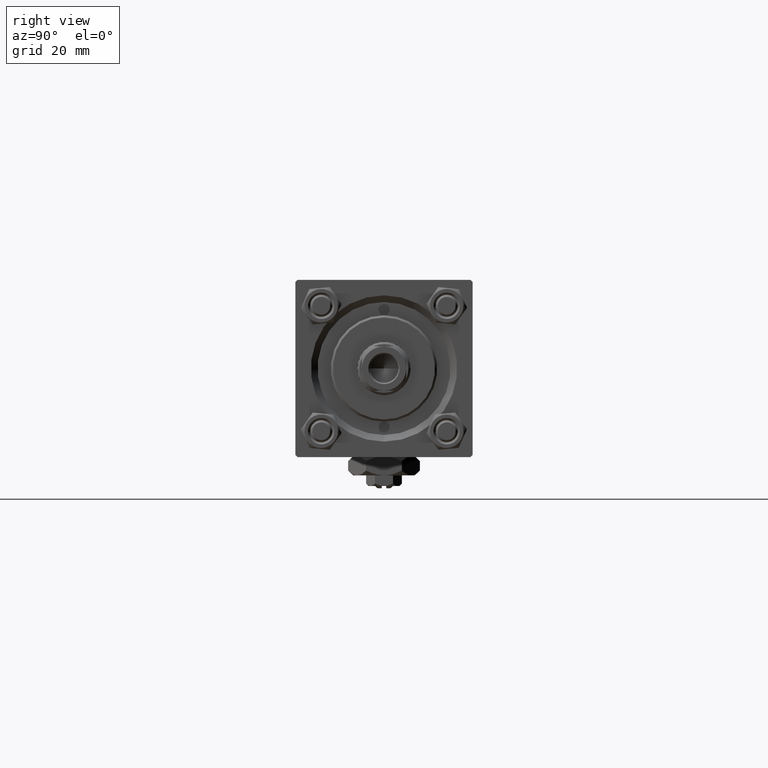
[diagram: clean part render]
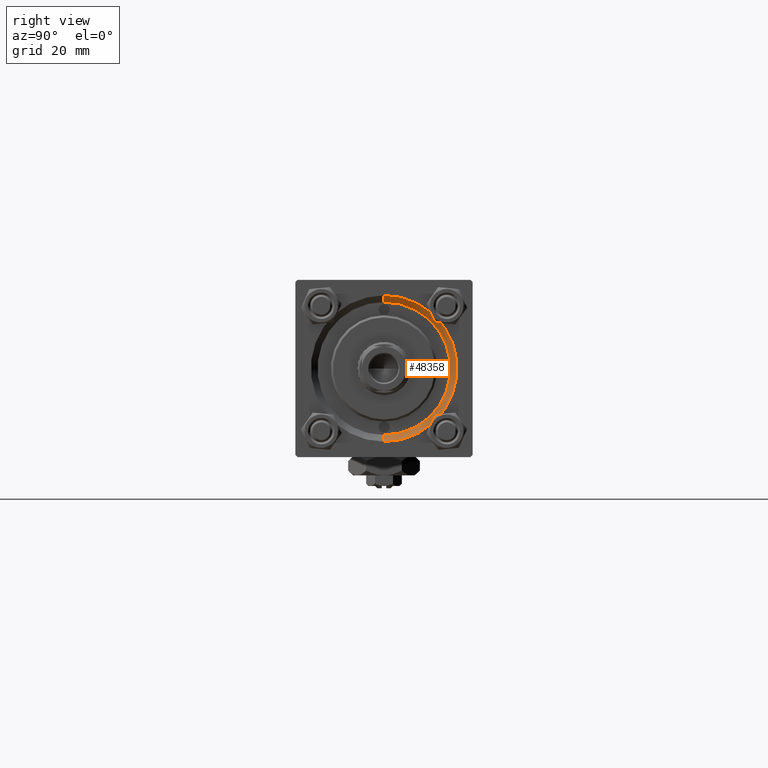
[diagram: same view with one face highlighted and labeled with its STEP entity id]
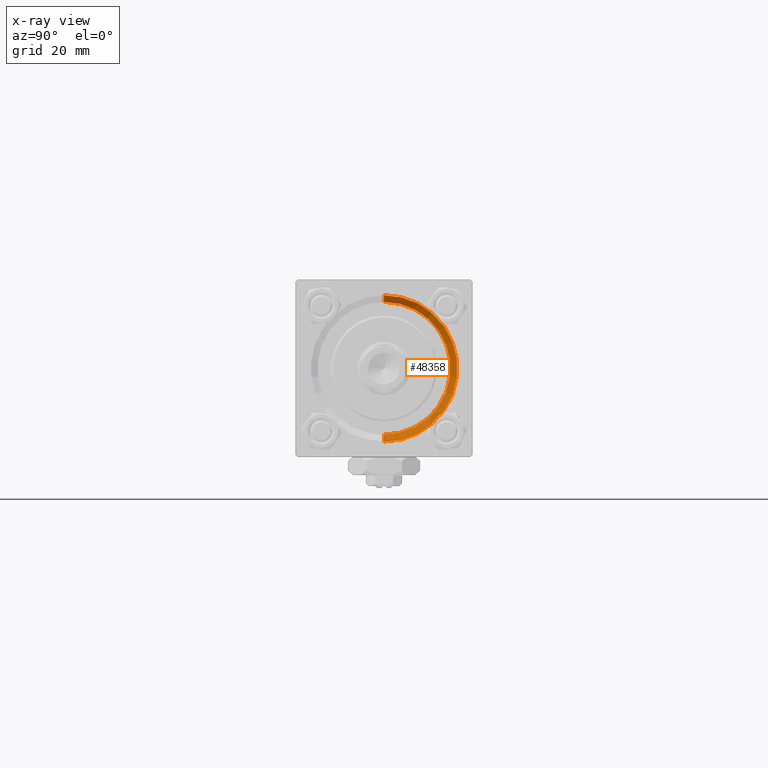
[diagram: x-ray of the same camera — body ghosted, the highlighted face saturated]
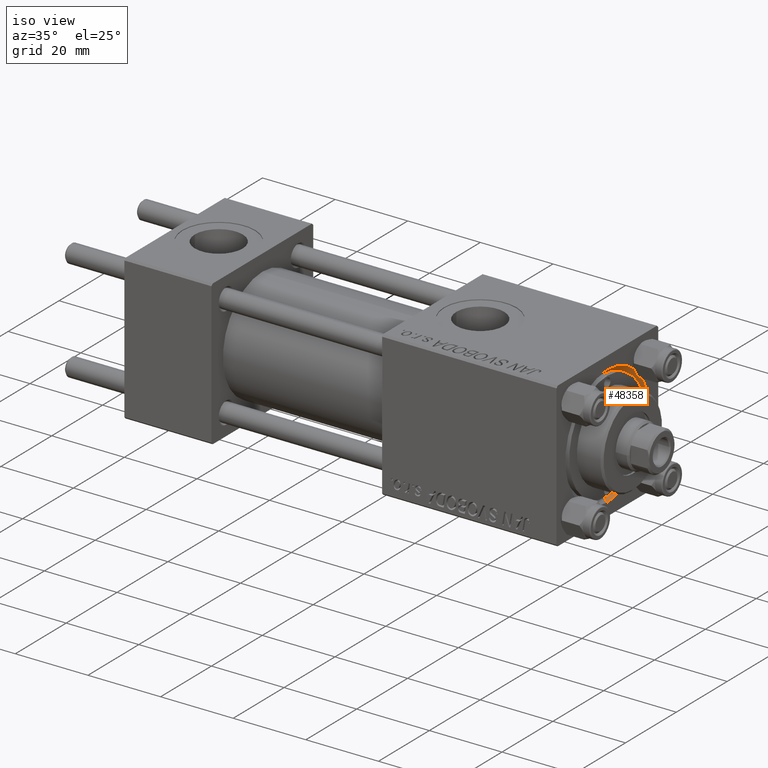
[diagram: same view with one face highlighted and labeled with its STEP entity id]
A machine part, right view. The second image highlights one B-rep face of the part: STEP entity #48358.
The next image is the same camera in x-ray: the body ghosted, the highlighted face saturated — about 0% of this face is hidden behind the body in this view.
A second angle (iso view) of the same face is appended — the face is thin or edge-on in the first view.
In plain terms, the highlighted conical surface has half-angle 45 deg.
Its self-contained STEP definition (entity closure, byte-faithful):
#53 = VERTEX_POINT ( 'NONE', #44375 ) ;
#1462 = AXIS2_PLACEMENT_3D ( 'NONE', #39983, #24314, #13369 ) ;
#3314 = ORIENTED_EDGE ( 'NONE', *, *, #26663, .T. ) ;
#4053 = ORIENTED_EDGE ( 'NONE', *, *, #16348, .F. ) ;
#5594 = CIRCLE ( 'NONE', #50613, 15.00000000000000000 ) ;
#6747 = CARTESIAN_POINT ( 'NONE',  ( 119.0000000000000142, 0.000000000000000000, 0.000000000000000000 ) ) ;
#10271 = CIRCLE ( 'NONE', #14428, 16.50000000000001421 ) ;
#13369 = DIRECTION ( 'NONE',  ( 0.000000000000000000, 0.000000000000000000, -1.000000000000000000 ) ) ;
#14428 = AXIS2_PLACEMENT_3D ( 'NONE', #6747, #38562, #51378 ) ;
#15487 = CARTESIAN_POINT ( 'NONE',  ( 119.0000000000000142, 0.000000000000000000, -16.50000000000001421 ) ) ;
#16348 = EDGE_CURVE ( 'NONE', #34831, #53, #42076, .T. ) ;
#17081 = EDGE_CURVE ( 'NONE', #53, #46622, #10271, .T. ) ;
#17739 = VECTOR ( 'NONE', #38401, 1000.000000000000114 ) ;
#17750 = EDGE_LOOP ( 'NONE', ( #4053, #45472, #3314, #47230 ) ) ;
#23835 = LINE ( 'NONE', #37583, #40496 ) ;
#24314 = DIRECTION ( 'NONE',  ( 1.000000000000000000, 0.000000000000000000, 0.000000000000000000 ) ) ;
#26663 = EDGE_CURVE ( 'NONE', #41907, #46622, #23835, .T. ) ;
#27846 = CARTESIAN_POINT ( 'NONE',  ( 117.5000000000000000, 1.836970198721029589E-15, 15.00000000000000000 ) ) ;
#29324 = DIRECTION ( 'NONE',  ( 1.000000000000000000, 0.000000000000000000, 0.000000000000000000 ) ) ;
#29696 = EDGE_CURVE ( 'NONE', #41907, #34831, #5594, .T. ) ;
#30088 = DIRECTION ( 'NONE',  ( 0.000000000000000000, 0.000000000000000000, 1.000000000000000000 ) ) ;
#34831 = VERTEX_POINT ( 'NONE', #27846 ) ;
#35160 = CARTESIAN_POINT ( 'NONE',  ( 117.5000000000000000, 0.000000000000000000, -15.00000000000000000 ) ) ;
#35809 = FACE_OUTER_BOUND ( 'NONE', #17750, .T. ) ;
#37333 = DIRECTION ( 'NONE',  ( 0.7071067811865474617, 0.000000000000000000, -0.7071067811865474617 ) ) ;
#37583 = CARTESIAN_POINT ( 'NONE',  ( 117.5000000000000000, 0.000000000000000000, -15.00000000000000000 ) ) ;
#37889 = CARTESIAN_POINT ( 'NONE',  ( 117.5000000000000000, 1.836970198721029589E-15, 15.00000000000000000 ) ) ;
#38401 = DIRECTION ( 'NONE',  ( 0.7071067811865474617, 8.659560562354932858E-17, 0.7071067811865474617 ) ) ;
#38562 = DIRECTION ( 'NONE',  ( -1.000000000000000000, -0.000000000000000000, -0.000000000000000000 ) ) ;
#39983 = CARTESIAN_POINT ( 'NONE',  ( 117.5000000000000000, 0.000000000000000000, 0.000000000000000000 ) ) ;
#40496 = VECTOR ( 'NONE', #37333, 1000.000000000000114 ) ;
#41333 = CARTESIAN_POINT ( 'NONE',  ( 117.5000000000000000, 0.000000000000000000, 0.000000000000000000 ) ) ;
#41489 = CONICAL_SURFACE ( 'NONE', #1462, 15.00000000000000000, 0.7853981633974482790 ) ;
#41907 = VERTEX_POINT ( 'NONE', #35160 ) ;
#42076 = LINE ( 'NONE', #37889, #17739 ) ;
#44375 = CARTESIAN_POINT ( 'NONE',  ( 119.0000000000000142, 2.020667218593134678E-15, 16.50000000000001421 ) ) ;
#45472 = ORIENTED_EDGE ( 'NONE', *, *, #29696, .F. ) ;
#46622 = VERTEX_POINT ( 'NONE', #15487 ) ;
#47230 = ORIENTED_EDGE ( 'NONE', *, *, #17081, .F. ) ;
#48358 = ADVANCED_FACE ( 'NONE', ( #35809 ), #41489, .F. ) ;
#50613 = AXIS2_PLACEMENT_3D ( 'NONE', #41333, #29324, #30088 ) ;
#51378 = DIRECTION ( 'NONE',  ( 0.000000000000000000, 0.000000000000000000, 1.000000000000000000 ) ) ;